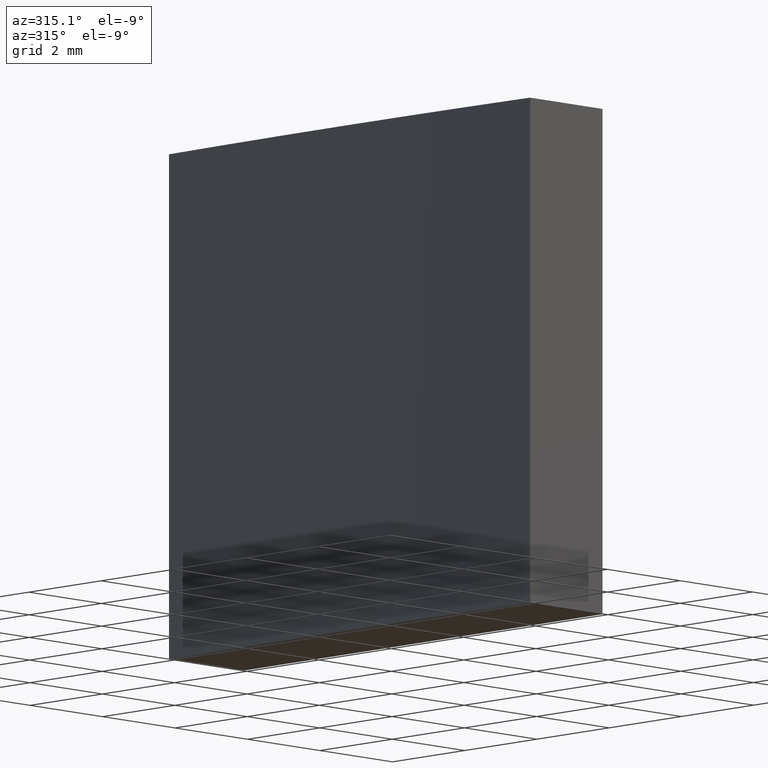
[diagram: clean part render]
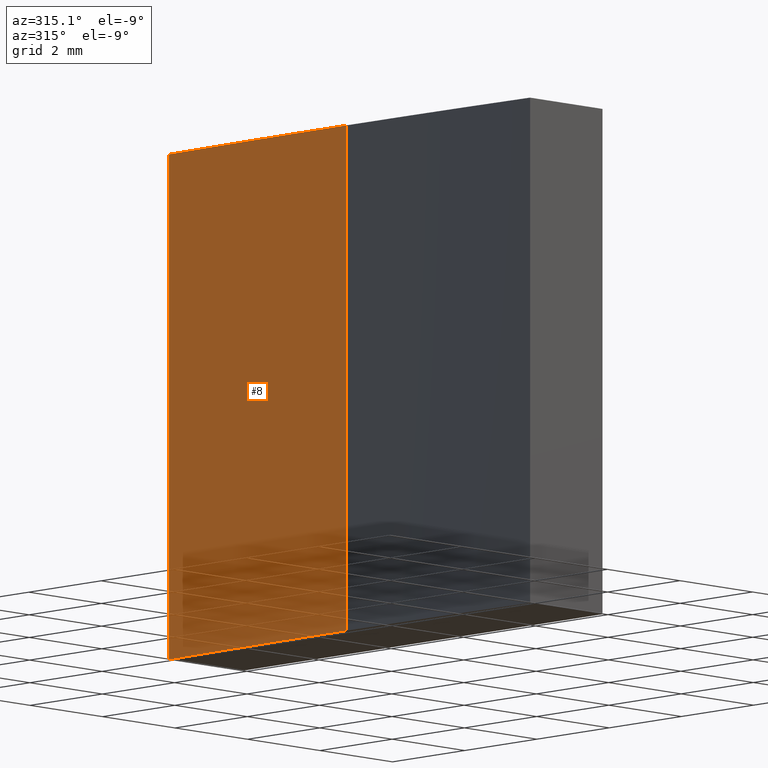
[diagram: same view with one face highlighted and labeled with its STEP entity id]
A machine part, auxiliary view. The second image highlights one B-rep face of the part: STEP entity #8.
In plain terms, the highlighted cylindrical surface (partial cylindrical patch) has radius 129.25 mm, axis along (-0, -0, -1).
Its self-contained STEP definition (entity closure, byte-faithful):
#8 = ADVANCED_FACE ( 'NONE', ( #209 ), #228, .T. ) ;
#12 = VERTEX_POINT ( 'NONE', #269 ) ;
#20 = CARTESIAN_POINT ( 'NONE',  ( 0.000000000000000000, 0.000000000000000000, 0.000000000000000000 ) ) ;
#21 = DIRECTION ( 'NONE',  ( -0.000000000000000000, -0.000000000000000000, -1.000000000000000000 ) ) ;
#31 = ORIENTED_EDGE ( 'NONE', *, *, #124, .F. ) ;
#32 = VERTEX_POINT ( 'NONE', #84 ) ;
#37 = CARTESIAN_POINT ( 'NONE',  ( 0.000000000000000000, 0.000000000000000000, 10.00000000000000000 ) ) ;
#40 = DIRECTION ( 'NONE',  ( -0.000000000000000000, -0.000000000000000000, -1.000000000000000000 ) ) ;
#48 = CIRCLE ( 'NONE', #77, 129.2500000000000000 ) ;
#53 = VECTOR ( 'NONE', #170, 1000.000000000000000 ) ;
#75 = DIRECTION ( 'NONE',  ( 0.000000000000000000, 0.000000000000000000, 1.000000000000000000 ) ) ;
#77 = AXIS2_PLACEMENT_3D ( 'NONE', #20, #130, #126 ) ;
#84 = CARTESIAN_POINT ( 'NONE',  ( -129.2500000000000000, 0.000000000000000000, 0.000000000000000000 ) ) ;
#98 = AXIS2_PLACEMENT_3D ( 'NONE', #37, #40, #109 ) ;
#101 = EDGE_LOOP ( 'NONE', ( #31, #241, #183, #262 ) ) ;
#109 = DIRECTION ( 'NONE',  ( -1.000000000000000000, 0.000000000000000000, 0.000000000000000000 ) ) ;
#113 = CIRCLE ( 'NONE', #232, 129.2500000000000000 ) ;
#124 = EDGE_CURVE ( 'NONE', #222, #32, #255, .T. ) ;
#126 = DIRECTION ( 'NONE',  ( 1.000000000000000000, 0.000000000000000000, 0.000000000000000000 ) ) ;
#130 = DIRECTION ( 'NONE',  ( 0.000000000000000000, 0.000000000000000000, 1.000000000000000000 ) ) ;
#136 = EDGE_CURVE ( 'NONE', #12, #237, #167, .T. ) ;
#137 = VECTOR ( 'NONE', #21, 1000.000000000000000 ) ;
#167 = LINE ( 'NONE', #247, #53 ) ;
#170 = DIRECTION ( 'NONE',  ( -0.000000000000000000, -0.000000000000000000, -1.000000000000000000 ) ) ;
#183 = ORIENTED_EDGE ( 'NONE', *, *, #136, .T. ) ;
#184 = CARTESIAN_POINT ( 'NONE',  ( -129.2500000000000000, 0.000000000000000000, 10.00000000000000000 ) ) ;
#188 = CARTESIAN_POINT ( 'NONE',  ( 0.000000000000000000, 0.000000000000000000, 10.00000000000000000 ) ) ;
#209 = FACE_OUTER_BOUND ( 'NONE', #101, .T. ) ;
#222 = VERTEX_POINT ( 'NONE', #268 ) ;
#223 = EDGE_CURVE ( 'NONE', #237, #32, #48, .T. ) ;
#225 = CARTESIAN_POINT ( 'NONE',  ( -129.1532519915778039, 4.999999999999997335, 0.000000000000000000 ) ) ;
#228 = CYLINDRICAL_SURFACE ( 'NONE', #98, 129.2500000000000000 ) ;
#232 = AXIS2_PLACEMENT_3D ( 'NONE', #188, #75, #254 ) ;
#233 = EDGE_CURVE ( 'NONE', #12, #222, #113, .T. ) ;
#237 = VERTEX_POINT ( 'NONE', #225 ) ;
#241 = ORIENTED_EDGE ( 'NONE', *, *, #233, .F. ) ;
#247 = CARTESIAN_POINT ( 'NONE',  ( -129.1532519915778039, 4.999999999999997335, 10.00000000000000000 ) ) ;
#254 = DIRECTION ( 'NONE',  ( 1.000000000000000000, 0.000000000000000000, 0.000000000000000000 ) ) ;
#255 = LINE ( 'NONE', #184, #137 ) ;
#262 = ORIENTED_EDGE ( 'NONE', *, *, #223, .T. ) ;
#268 = CARTESIAN_POINT ( 'NONE',  ( -129.2500000000000000, 0.000000000000000000, 10.00000000000000000 ) ) ;
#269 = CARTESIAN_POINT ( 'NONE',  ( -129.1532519915778039, 4.999999999999997335, 10.00000000000000000 ) ) ;